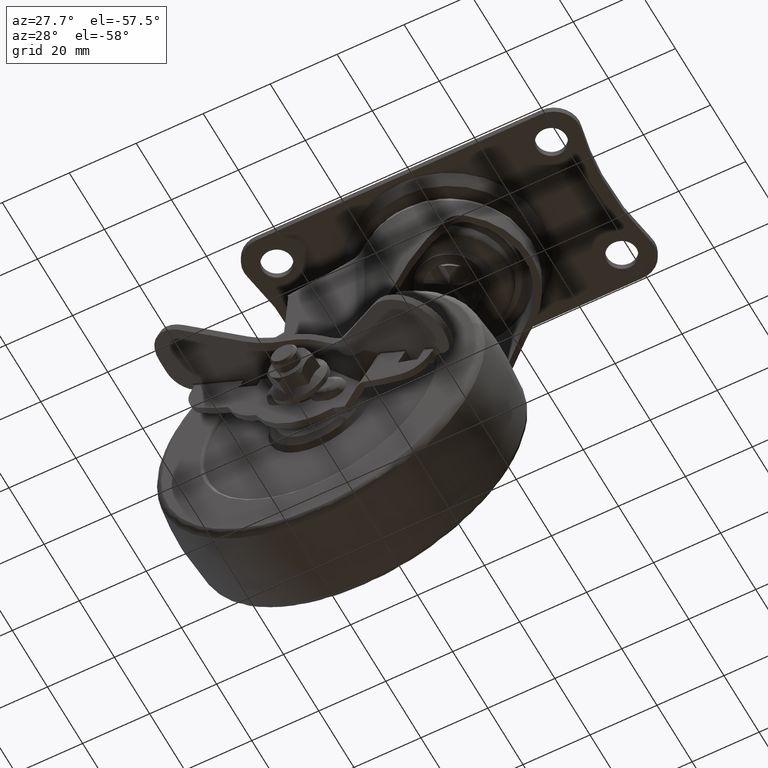
[diagram: clean part render]
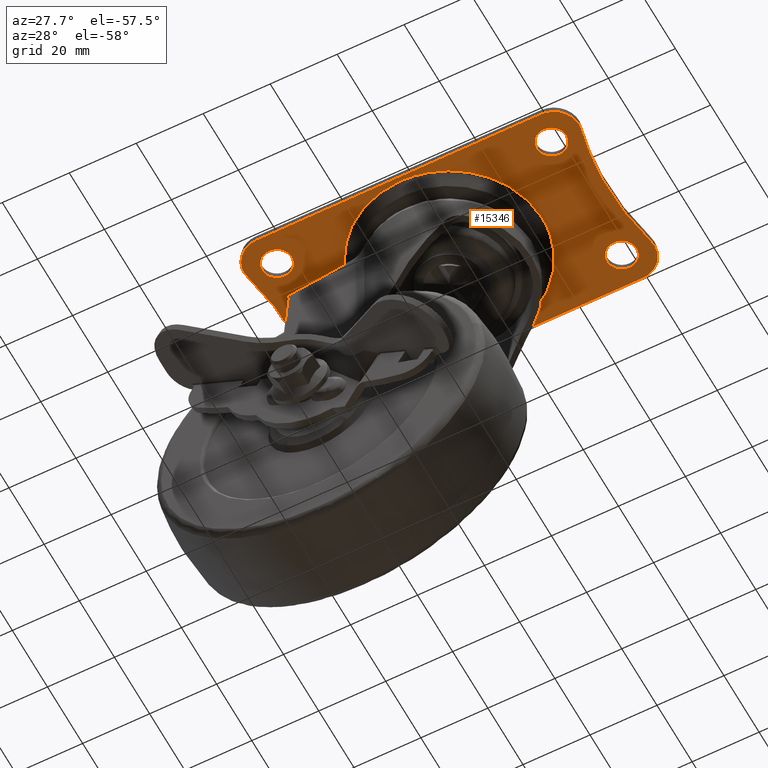
[diagram: same view with one face highlighted and labeled with its STEP entity id]
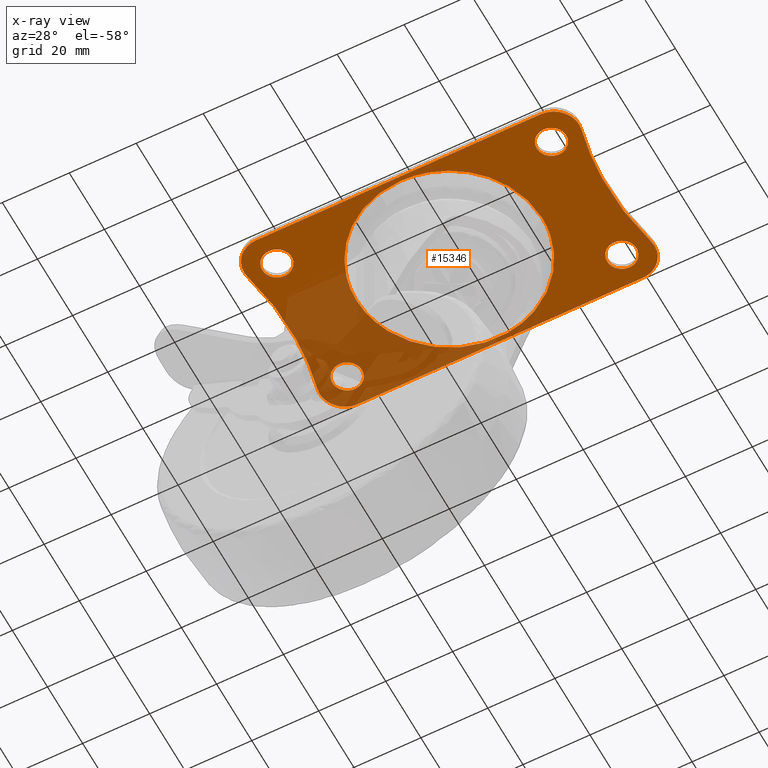
[diagram: x-ray of the same camera — body ghosted, the highlighted face saturated]
A machine part, auxiliary view. The second image highlights one B-rep face of the part: STEP entity #15346.
The next image is the same camera in x-ray: the body ghosted, the highlighted face saturated — about 31% of this face is hidden behind the body in this view.
In plain terms, the highlighted face is a freeform B-spline surface patch.
Its self-contained STEP definition (entity closure, byte-faithful):
#9036=CARTESIAN_POINT('',(-37.808353375535802,23.028759235998809,4.510281E-017));
#9037=VERTEX_POINT('',#9036);
#9043=CARTESIAN_POINT('',(-36.599999900000000,20.0,0.0));
#9044=VERTEX_POINT('',#9043);
#9045=CARTESIAN_POINT('',(-36.599999900000000,20.0,0.0));
#9046=CARTESIAN_POINT('',(-36.599326234584453,20.591642595899732,8.810454E-018));
#9047=CARTESIAN_POINT('',(-36.828199981218297,21.704569145791570,2.538362E-017));
#9048=CARTESIAN_POINT('',(-37.448755448036721,22.650347557467079,3.946769E-017));
#9049=CARTESIAN_POINT('',(-37.808353375535802,23.028759235998809,4.510281E-017));
#9050=B_SPLINE_CURVE_WITH_KNOTS('',3,(#9045,#9046,#9047,#9048,#9049),.UNSPECIFIED.,.F.,.U.,(4,1,4),(0.000000125256193,1.774679087385297,3.340637925313379),.UNSPECIFIED.);
#9051=EDGE_CURVE('',#9044,#9037,#9050,.T.);
#9053=CARTESIAN_POINT('',(-40.999995359596333,15.599999900002450,0.0));
#9054=VERTEX_POINT('',#9053);
#9055=CARTESIAN_POINT('',(-40.999995359596333,15.599999900002450,0.0));
#9056=CARTESIAN_POINT('',(-40.676029447133722,15.599966680798840,0.0));
#9057=CARTESIAN_POINT('',(-39.920038995695997,15.683750069068511,0.0));
#9058=CARTESIAN_POINT('',(-38.935462604216788,16.063471376692029,0.0));
#9059=CARTESIAN_POINT('',(-38.107489630315243,16.646852834127259,0.0));
#9060=CARTESIAN_POINT('',(-37.508903166445542,17.275539651516169,0.0));
#9061=CARTESIAN_POINT('',(-37.005713955834601,18.070057284172030,0.0));
#9062=CARTESIAN_POINT('',(-36.675839400117930,18.992077417293881,0.0));
#9063=CARTESIAN_POINT('',(-36.599951778581442,19.676026319193419,0.0));
#9064=CARTESIAN_POINT('',(-36.599999900000000,20.0,0.0));
#9065=B_SPLINE_CURVE_WITH_KNOTS('',3,(#9055,#9056,#9057,#9058,#9059,#9060,#9061,#9062,#9063,#9064),.UNSPECIFIED.,.F.,.U.,(4,1,1,1,1,1,1,4),(0.000000460138867,0.971939552033052,2.267926207290485,3.131933760526557,3.995801355094923,4.859759915721695,5.939735721904775,6.911674816714666),.UNSPECIFIED.);
#9066=EDGE_CURVE('',#9054,#9044,#9065,.T.);
#9068=CARTESIAN_POINT('',(-45.400000100000007,20.0,0.0));
#9069=VERTEX_POINT('',#9068);
#9070=CARTESIAN_POINT('',(-45.400000100000007,20.0,0.0));
#9071=CARTESIAN_POINT('',(-45.400607781809683,19.423931304166221,0.0));
#9072=CARTESIAN_POINT('',(-45.220644751467617,18.524520095141650,0.0));
#9073=CARTESIAN_POINT('',(-44.539570743215251,17.286905966286380,0.0));
#9074=CARTESIAN_POINT('',(-43.713068037697937,16.460443572259070,0.0));
#9075=CARTESIAN_POINT('',(-42.475473924743874,15.779358898505309,0.0));
#9076=CARTESIAN_POINT('',(-41.576069646600367,15.599383116862450,0.0));
#9077=CARTESIAN_POINT('',(-40.999995359596333,15.599999900002450,0.0));
#9078=B_SPLINE_CURVE_WITH_KNOTS('',3,(#9070,#9071,#9072,#9073,#9074,#9075,#9076,#9077),.UNSPECIFIED.,.F.,.U.,(4,1,1,1,1,4),(0.000000453793878,1.727920351884094,2.699936220534486,4.211744282343696,5.183760151598372,6.911680047661599),.UNSPECIFIED.);
#9079=EDGE_CURVE('',#9069,#9054,#9078,.T.);
#9081=CARTESIAN_POINT('',(-43.841265772415063,23.359645778603419,-7.098571E-017));
#9082=VERTEX_POINT('',#9081);
#9083=CARTESIAN_POINT('',(-43.841265772415063,23.359645778603419,-7.098571E-017));
#9084=CARTESIAN_POINT('',(-44.297910684491740,22.974421921917550,-6.284634E-017));
#9085=CARTESIAN_POINT('',(-44.924098626456363,22.174133111525929,-4.593710E-017));
#9086=CARTESIAN_POINT('',(-45.335552286770231,20.955681271940069,-2.019252E-017));
#9087=CARTESIAN_POINT('',(-45.400007563346307,20.278736757898368,-5.889408E-018));
#9088=CARTESIAN_POINT('',(-45.400000100000007,20.0,0.0));
#9089=B_SPLINE_CURVE_WITH_KNOTS('',3,(#9083,#9084,#9085,#9086,#9087,#9088),.UNSPECIFIED.,.F.,.U.,(4,1,1,4),(0.000000126610487,1.791980629221837,2.986600119089665,3.822845099270182),.UNSPECIFIED.);
#9090=EDGE_CURVE('',#9082,#9069,#9089,.T.);
#9125=CARTESIAN_POINT('',(-41.000004640403688,24.400000099997548,0.0));
#9126=VERTEX_POINT('',#9125);
#9127=CARTESIAN_POINT('',(-41.000004640403688,24.400000099997548,0.0));
#9128=CARTESIAN_POINT('',(-41.482668478367749,24.400273100476308,-1.205881E-017));
#9129=CARTESIAN_POINT('',(-42.512036758557500,24.228826140428591,-3.777641E-017));
#9130=CARTESIAN_POINT('',(-43.423907623898501,23.713278709472821,-6.055848E-017));
#9131=CARTESIAN_POINT('',(-43.841265772415063,23.359645778603419,-7.098571E-017));
#9132=B_SPLINE_CURVE_WITH_KNOTS('',3,(#9127,#9128,#9129,#9130,#9131),.UNSPECIFIED.,.F.,.U.,(4,1,4),(0.000000084885139,1.447918023533089,3.088834453250993),.UNSPECIFIED.);
#9133=EDGE_CURVE('',#9126,#9082,#9132,.T.);
#9135=CARTESIAN_POINT('',(-37.808353375535802,23.028759235998809,4.510281E-017));
#9136=CARTESIAN_POINT('',(-38.141025432062143,23.379792775896320,4.040166E-017));
#9137=CARTESIAN_POINT('',(-38.773222376888249,23.856419622008229,3.146777E-017));
#9138=CARTESIAN_POINT('',(-39.884161073203650,24.300690845817080,1.576855E-017));
#9139=CARTESIAN_POINT('',(-40.590819765973357,24.400135836787701,5.782397E-018));
#9140=CARTESIAN_POINT('',(-41.000004640403688,24.400000099997548,0.0));
#9141=B_SPLINE_CURVE_WITH_KNOTS('',3,(#9135,#9136,#9137,#9138,#9139,#9140),.UNSPECIFIED.,.F.,.U.,(4,1,1,4),(0.000000129539582,1.450770006644467,2.343492782973436,3.571043813885696),.UNSPECIFIED.);
#9142=EDGE_CURVE('',#9037,#9126,#9141,.T.);
#9232=CARTESIAN_POINT('',(-37.808353375535802,-16.971240764001202,4.510281E-017));
#9233=VERTEX_POINT('',#9232);
#9239=CARTESIAN_POINT('',(-36.599999900000000,-20.0,0.0));
#9240=VERTEX_POINT('',#9239);
#9241=CARTESIAN_POINT('',(-36.599999900000000,-20.0,0.0));
#9242=CARTESIAN_POINT('',(-36.599627481785802,-19.477977492158740,7.773705E-018));
#9243=CARTESIAN_POINT('',(-36.800567507259842,-18.364783425246141,2.435085E-017));
#9244=CARTESIAN_POINT('',(-37.400581059374083,-17.399925240095950,3.871905E-017));
#9245=CARTESIAN_POINT('',(-37.808353375535802,-16.971240764001202,4.510281E-017));
#9246=B_SPLINE_CURVE_WITH_KNOTS('',3,(#9241,#9242,#9243,#9244,#9245),.UNSPECIFIED.,.F.,.U.,(4,1,4),(0.000000125255292,1.565958963268513,3.340637925313375),.UNSPECIFIED.);
#9247=EDGE_CURVE('',#9240,#9233,#9246,.T.);
#9249=CARTESIAN_POINT('',(-40.999995359596340,-24.400000099997548,0.0));
#9250=VERTEX_POINT('',#9249);
#9251=CARTESIAN_POINT('',(-40.999995359596340,-24.400000099997548,0.0));
#9252=CARTESIAN_POINT('',(-40.604020204652649,-24.400141210927881,0.0));
#9253=CARTESIAN_POINT('',(-39.848164238300868,-24.297210356630568,0.0));
#9254=CARTESIAN_POINT('',(-38.675186393094577,-23.811746986022840,0.0));
#9255=CARTESIAN_POINT('',(-37.686882654669617,-23.000604714754399,0.0));
#9256=CARTESIAN_POINT('',(-36.834999431412967,-21.691093609795828,0.0));
#9257=CARTESIAN_POINT('',(-36.599039591387921,-20.648161910889719,0.0));
#9258=CARTESIAN_POINT('',(-36.599999900000000,-20.0,0.0));
#9259=B_SPLINE_CURVE_WITH_KNOTS('',3,(#9251,#9252,#9253,#9254,#9255,#9256,#9257,#9258),.UNSPECIFIED.,.F.,.U.,(4,1,1,1,1,4),(0.000000460142762,1.187911892418697,2.267926207293846,3.779741512305171,4.967763505593353,6.911674816714607),.UNSPECIFIED.);
#9260=EDGE_CURVE('',#9250,#9240,#9259,.T.);
#9262=CARTESIAN_POINT('',(-45.400000100000007,-20.0,0.0));
#9263=VERTEX_POINT('',#9262);
#9264=CARTESIAN_POINT('',(-45.400000100000007,-20.0,0.0));
#9265=CARTESIAN_POINT('',(-45.400590200546489,-20.576045076640121,0.0));
#9266=CARTESIAN_POINT('',(-45.206349405249071,-21.547521165000010,0.0));
#9267=CARTESIAN_POINT('',(-44.565951813948892,-22.645877436977731,0.0));
#9268=CARTESIAN_POINT('',(-43.767874856441608,-23.484297200909161,0.0));
#9269=CARTESIAN_POINT('',(-42.619609015822682,-24.192072380241189,0.0));
#9270=CARTESIAN_POINT('',(-41.576008540878988,-24.400581873365780,0.0));
#9271=CARTESIAN_POINT('',(-40.999995359596340,-24.400000099997548,0.0));
#9272=B_SPLINE_CURVE_WITH_KNOTS('',3,(#9264,#9265,#9266,#9267,#9268,#9269,#9270,#9271),.UNSPECIFIED.,.F.,.U.,(4,1,1,1,1,4),(0.000000453788219,1.727920351880528,2.915876126465146,3.779744377931400,5.183760151597596,6.911680047661633),.UNSPECIFIED.);
#9273=EDGE_CURVE('',#9263,#9250,#9272,.T.);
#9275=CARTESIAN_POINT('',(-43.841265772415063,-16.640354221396581,-7.098571E-017));
#9276=VERTEX_POINT('',#9275);
#9277=CARTESIAN_POINT('',(-43.841265772415063,-16.640354221396581,-7.098571E-017));
#9278=CARTESIAN_POINT('',(-44.297944122459448,-17.025578615611138,-6.284633E-017));
#9279=CARTESIAN_POINT('',(-44.873914087001431,-17.761846773011690,-4.728977E-017));
#9280=CARTESIAN_POINT('',(-45.316808580303473,-18.964738673935319,-2.187396E-017));
#9281=CARTESIAN_POINT('',(-45.400089114430749,-19.641608075696780,-7.572436E-018));
#9282=CARTESIAN_POINT('',(-45.400000100000007,-20.0,0.0));
#9283=B_SPLINE_CURVE_WITH_KNOTS('',3,(#9277,#9278,#9279,#9280,#9281,#9282),.UNSPECIFIED.,.F.,.U.,(4,1,1,4),(0.000000126610975,1.791980629221926,2.747667593237608,3.822845099270195),.UNSPECIFIED.);
#9284=EDGE_CURVE('',#9276,#9263,#9283,.T.);
#9319=CARTESIAN_POINT('',(-41.000004640403688,-15.599999900002450,0.0));
#9320=VERTEX_POINT('',#9319);
#9321=CARTESIAN_POINT('',(-41.000004640403688,-15.599999900002450,0.0));
#9322=CARTESIAN_POINT('',(-41.547035457674838,-15.599483547155550,-1.366694E-017));
#9323=CARTESIAN_POINT('',(-42.576212063734353,-15.794674579979580,-3.937976E-017));
#9324=CARTESIAN_POINT('',(-43.472901530817850,-16.328469134564632,-6.178254E-017));
#9325=CARTESIAN_POINT('',(-43.841265772415063,-16.640354221396581,-7.098571E-017));
#9326=B_SPLINE_CURVE_WITH_KNOTS('',3,(#9321,#9322,#9323,#9324,#9325),.UNSPECIFIED.,.F.,.U.,(4,1,4),(0.000000084884503,1.640915776160015,3.088834453251002),.UNSPECIFIED.);
#9327=EDGE_CURVE('',#9320,#9276,#9326,.T.);
#9329=CARTESIAN_POINT('',(-37.808353375535802,-16.971240764001202,4.510281E-017));
#9330=CARTESIAN_POINT('',(-38.243057964426072,-16.511782998019779,3.895979E-017));
#9331=CARTESIAN_POINT('',(-39.252129365839018,-15.829673034506680,2.470010E-017));
#9332=CARTESIAN_POINT('',(-40.441953334743793,-15.599452979358061,7.886104E-018));
#9333=CARTESIAN_POINT('',(-41.000004640403688,-15.599999900002450,0.0));
#9334=B_SPLINE_CURVE_WITH_KNOTS('',3,(#9329,#9330,#9331,#9332,#9333),.UNSPECIFIED.,.F.,.U.,(4,1,4),(0.000000129539294,1.897087737921803,3.571043813885686),.UNSPECIFIED.);
#9335=EDGE_CURVE('',#9233,#9320,#9334,.T.);
#9426=CARTESIAN_POINT('',(44.191646624464212,23.028759235998809,4.510281E-017));
#9427=VERTEX_POINT('',#9426);
#9433=CARTESIAN_POINT('',(45.400000100000007,20.0,0.0));
#9434=VERTEX_POINT('',#9433);
#9435=CARTESIAN_POINT('',(45.400000100000007,20.0,0.0));
#9436=CARTESIAN_POINT('',(45.400763296925099,20.591675775948602,8.810948E-018));
#9437=CARTESIAN_POINT('',(45.171675140227201,21.704495188128590,2.538251E-017));
#9438=CARTESIAN_POINT('',(44.551303441960570,22.650387389053979,3.946828E-017));
#9439=CARTESIAN_POINT('',(44.191646624464212,23.028759235998809,4.510281E-017));
#9440=B_SPLINE_CURVE_WITH_KNOTS('',3,(#9435,#9436,#9437,#9438,#9439),.UNSPECIFIED.,.F.,.U.,(4,1,4),(0.000000125256229,1.774679087385618,3.340637925313373),.UNSPECIFIED.);
#9441=EDGE_CURVE('',#9434,#9427,#9440,.T.);
#9443=CARTESIAN_POINT('',(41.000004640403667,15.599999900002450,0.0));
#9444=VERTEX_POINT('',#9443);
#9445=CARTESIAN_POINT('',(41.000004640403667,15.599999900002450,0.0));
#9446=CARTESIAN_POINT('',(41.576071845699140,15.599392930738150,0.0));
#9447=CARTESIAN_POINT('',(42.475490195610213,15.779346738342420,0.0));
#9448=CARTESIAN_POINT('',(43.713067453243497,16.460453464487539,0.0));
#9449=CARTESIAN_POINT('',(44.487938650094037,17.235221887885370,0.0));
#9450=CARTESIAN_POINT('',(45.197463393300161,18.452864674061370,0.0));
#9451=CARTESIAN_POINT('',(45.401053393963537,19.351784646075320,0.0));
#9452=CARTESIAN_POINT('',(45.400000100000007,20.0,0.0));
#9453=B_SPLINE_CURVE_WITH_KNOTS('',3,(#9445,#9446,#9447,#9448,#9449,#9450,#9451,#9452),.UNSPECIFIED.,.F.,.U.,(4,1,1,1,1,4),(0.000000460139980,1.727919049659939,2.699934183081793,4.211741092349952,4.967763505592465,6.911674816714671),.UNSPECIFIED.);
#9454=EDGE_CURVE('',#9444,#9434,#9453,.T.);
#9456=CARTESIAN_POINT('',(36.599999900000000,20.0,0.0));
#9457=VERTEX_POINT('',#9456);
#9458=CARTESIAN_POINT('',(36.599999900000000,20.0,0.0));
#9459=CARTESIAN_POINT('',(36.599310131613983,19.423896235975231,0.0));
#9460=CARTESIAN_POINT('',(36.765042728769792,18.596536449218089,0.0));
#9461=CARTESIAN_POINT('',(37.347400217043173,17.473961179307182,0.0));
#9462=CARTESIAN_POINT('',(37.989101529249773,16.730068055101452,0.0));
#9463=CARTESIAN_POINT('',(38.876375245152381,16.105241301741309,0.0));
#9464=CARTESIAN_POINT('',(39.848148215939823,15.702749678452790,0.0));
#9465=CARTESIAN_POINT('',(40.604025221004839,15.599857729474740,0.0));
#9466=CARTESIAN_POINT('',(41.000004640403667,15.599999900002450,0.0));
#9467=B_SPLINE_CURVE_WITH_KNOTS('',3,(#9458,#9459,#9460,#9461,#9462,#9463,#9464,#9465,#9466),.UNSPECIFIED.,.F.,.U.,(4,1,1,1,1,1,4),(0.000000453793280,1.727920351883699,2.483900422959851,3.779744377932775,4.643752584677594,5.723767716651169,6.911680047661629),.UNSPECIFIED.);
#9468=EDGE_CURVE('',#9457,#9444,#9467,.T.);
#9470=CARTESIAN_POINT('',(38.158734227584937,23.359645778603419,-7.098571E-017));
#9471=VERTEX_POINT('',#9470);
#9472=CARTESIAN_POINT('',(38.158734227584937,23.359645778603419,-7.098571E-017));
#9473=CARTESIAN_POINT('',(37.702058812783690,22.974421723235441,-6.284634E-017));
#9474=CARTESIAN_POINT('',(37.126084906330412,22.238152538582380,-4.728976E-017));
#9475=CARTESIAN_POINT('',(36.683190821877638,21.035262032408738,-2.187397E-017));
#9476=CARTESIAN_POINT('',(36.599911892731569,20.358388893084790,-7.572372E-018));
#9477=CARTESIAN_POINT('',(36.599999900000000,20.0,0.0));
#9478=B_SPLINE_CURVE_WITH_KNOTS('',3,(#9472,#9473,#9474,#9475,#9476,#9477),.UNSPECIFIED.,.F.,.U.,(4,1,1,4),(0.000000126609319,1.791980629221591,2.747667593237516,3.822845099270190),.UNSPECIFIED.);
#9479=EDGE_CURVE('',#9471,#9457,#9478,.T.);
#9514=CARTESIAN_POINT('',(40.999995359596319,24.400000099997548,0.0));
#9515=VERTEX_POINT('',#9514);
#9516=CARTESIAN_POINT('',(40.999995359596319,24.400000099997548,0.0));
#9517=CARTESIAN_POINT('',(40.452972107819640,24.400453391046089,-1.366675E-017));
#9518=CARTESIAN_POINT('',(39.423786312015672,24.205382020782650,-3.937980E-017));
#9519=CARTESIAN_POINT('',(38.527087972453621,23.671537379245130,-6.178280E-017));
#9520=CARTESIAN_POINT('',(38.158734227584937,23.359645778603419,-7.098571E-017));
#9521=B_SPLINE_CURVE_WITH_KNOTS('',3,(#9516,#9517,#9518,#9519,#9520),.UNSPECIFIED.,.F.,.U.,(4,1,4),(0.000000084884445,1.640915776160308,3.088834453251010),.UNSPECIFIED.);
#9522=EDGE_CURVE('',#9515,#9471,#9521,.T.);
#9524=CARTESIAN_POINT('',(44.191646624464212,23.028759235998809,4.510281E-017));
#9525=CARTESIAN_POINT('',(43.756943726630389,23.488217245653718,3.895981E-017));
#9526=CARTESIAN_POINT('',(42.747866823221692,24.170327258349531,2.470005E-017));
#9527=CARTESIAN_POINT('',(41.558050108599133,24.400546087498540,7.886153E-018));
#9528=CARTESIAN_POINT('',(40.999995359596319,24.400000099997548,0.0));
#9529=B_SPLINE_CURVE_WITH_KNOTS('',3,(#9524,#9525,#9526,#9527,#9528),.UNSPECIFIED.,.F.,.U.,(4,1,4),(0.000000129540891,1.897087737922186,3.571043813885688),.UNSPECIFIED.);
#9530=EDGE_CURVE('',#9427,#9515,#9529,.T.);
#9621=CARTESIAN_POINT('',(44.191646624464212,-16.971240764001191,4.510281E-017));
#9622=VERTEX_POINT('',#9621);
#9628=CARTESIAN_POINT('',(45.400000100000007,-20.0,0.0));
#9629=VERTEX_POINT('',#9628);
#9630=CARTESIAN_POINT('',(45.400000100000007,-20.0,0.0));
#9631=CARTESIAN_POINT('',(45.400371690143132,-19.477975236255080,7.773739E-018));
#9632=CARTESIAN_POINT('',(45.199434999601529,-18.364783948082788,2.435084E-017));
#9633=CARTESIAN_POINT('',(44.599419663391501,-17.399926227180970,3.871903E-017));
#9634=CARTESIAN_POINT('',(44.191646624464212,-16.971240764001191,4.510281E-017));
#9635=B_SPLINE_CURVE_WITH_KNOTS('',3,(#9630,#9631,#9632,#9633,#9634),.UNSPECIFIED.,.F.,.U.,(4,1,4),(0.000000125254362,1.565958963268174,3.340637925313387),.UNSPECIFIED.);
#9636=EDGE_CURVE('',#9629,#9622,#9635,.T.);
#9638=CARTESIAN_POINT('',(41.000004640403667,-24.400000099997548,0.0));
#9639=VERTEX_POINT('',#9638);
#9640=CARTESIAN_POINT('',(41.000004640403667,-24.400000099997548,0.0));
#9641=CARTESIAN_POINT('',(41.648135041192340,-24.400983394968421,0.0));
#9642=CARTESIAN_POINT('',(42.763155685121482,-24.148854542784040,0.0));
#9643=CARTESIAN_POINT('',(44.055883898841323,-23.261835688795621,0.0));
#9644=CARTESIAN_POINT('',(44.727339394858006,-22.401129663869099,0.0));
#9645=CARTESIAN_POINT('',(45.249481842404052,-21.331549353665761,0.0));
#9646=CARTESIAN_POINT('',(45.400583859929668,-20.576085410968201,0.0));
#9647=CARTESIAN_POINT('',(45.400000100000007,-20.0,0.0));
#9648=B_SPLINE_CURVE_WITH_KNOTS('',3,(#9640,#9641,#9642,#9643,#9644,#9645,#9646,#9647),.UNSPECIFIED.,.F.,.U.,(4,1,1,1,1,4),(0.000000460140767,1.943911772386969,3.347906009618380,4.643749068791827,5.183756225167715,6.911674816714633),.UNSPECIFIED.);
#9649=EDGE_CURVE('',#9639,#9629,#9648,.T.);
#9651=CARTESIAN_POINT('',(36.599999900000000,-20.0,0.0));
#9652=VERTEX_POINT('',#9651);
#9653=CARTESIAN_POINT('',(36.599999900000000,-20.0,0.0));
#9654=CARTESIAN_POINT('',(36.599966735913171,-20.323969942578259,0.0));
#9655=CARTESIAN_POINT('',(36.683774429641034,-21.079934129278548,0.0));
#9656=CARTESIAN_POINT('',(37.141863349434608,-22.268308701461951,0.0));
#9657=CARTESIAN_POINT('',(38.045725021565531,-23.369711744615110,0.0));
#9658=CARTESIAN_POINT('',(39.380442966441031,-24.192012238945079,0.0));
#9659=CARTESIAN_POINT('',(40.423980788776312,-24.400597124536290,0.0));
#9660=CARTESIAN_POINT('',(41.000004640403667,-24.400000099997548,0.0));
#9661=B_SPLINE_CURVE_WITH_KNOTS('',3,(#9653,#9654,#9655,#9656,#9657,#9658,#9659,#9660),.UNSPECIFIED.,.F.,.U.,(4,1,1,1,1,4),(0.000000453793152,0.971940283346328,2.267927917548367,3.779744377933133,5.183760151597977,6.911680047661641),.UNSPECIFIED.);
#9662=EDGE_CURVE('',#9652,#9639,#9661,.T.);
#9664=CARTESIAN_POINT('',(38.158734227584937,-16.640354221396581,-7.098571E-017));
#9665=VERTEX_POINT('',#9664);
#9666=CARTESIAN_POINT('',(38.158734227584937,-16.640354221396581,-7.098571E-017));
#9667=CARTESIAN_POINT('',(37.824127276871423,-16.923077383848749,-6.501207E-017));
#9668=CARTESIAN_POINT('',(37.373351620856958,-17.438119453086390,-5.412978E-017));
#9669=CARTESIAN_POINT('',(36.772973986927283,-18.566948686573308,-3.027883E-017));
#9670=CARTESIAN_POINT('',(36.599236853975519,-19.402533943545610,-1.262382E-017));
#9671=CARTESIAN_POINT('',(36.599999900000000,-20.0,0.0));
#9672=B_SPLINE_CURVE_WITH_KNOTS('',3,(#9666,#9667,#9668,#9669,#9670,#9671),.UNSPECIFIED.,.F.,.U.,(4,1,1,4),(0.000000126610369,1.314123081121320,2.030864596559126,3.822845099270190),.UNSPECIFIED.);
#9673=EDGE_CURVE('',#9665,#9652,#9672,.T.);
#9708=CARTESIAN_POINT('',(40.999995359596319,-15.599999900002450,0.0));
#9709=VERTEX_POINT('',#9708);
#9710=CARTESIAN_POINT('',(40.999995359596319,-15.599999900002450,0.0));
#9711=CARTESIAN_POINT('',(40.452976886484500,-15.599565285710071,-1.366663E-017));
#9712=CARTESIAN_POINT('',(39.423773143816177,-15.794575653727740,-3.938012E-017));
#9713=CARTESIAN_POINT('',(38.527092373260153,-16.328474129902869,-6.178269E-017));
#9714=CARTESIAN_POINT('',(38.158734227584937,-16.640354221396581,-7.098571E-017));
#9715=B_SPLINE_CURVE_WITH_KNOTS('',3,(#9710,#9711,#9712,#9713,#9714),.UNSPECIFIED.,.F.,.U.,(4,1,4),(0.000000084884916,1.640915776160376,3.088834453251018),.UNSPECIFIED.);
#9716=EDGE_CURVE('',#9709,#9665,#9715,.T.);
#9718=CARTESIAN_POINT('',(44.191646624464212,-16.971240764001191,4.510281E-017));
#9719=CARTESIAN_POINT('',(43.807899059265019,-16.566092473903769,3.967989E-017));
#9720=CARTESIAN_POINT('',(42.821921722453183,-15.861368181837699,2.574655E-017));
#9721=CARTESIAN_POINT('',(41.632485131820872,-15.599143047932440,8.938031E-018));
#9722=CARTESIAN_POINT('',(40.999995359596319,-15.599999900002450,0.0));
#9723=B_SPLINE_CURVE_WITH_KNOTS('',3,(#9718,#9719,#9720,#9721,#9722),.UNSPECIFIED.,.F.,.U.,(4,1,4),(0.000000129539267,1.673956205506559,3.571043813885685),.UNSPECIFIED.);
#9724=EDGE_CURVE('',#9622,#9709,#9723,.T.);
#13945=CARTESIAN_POINT('',(12.442635101949760,24.804101224093799,-9.043226E-015));
#13946=VERTEX_POINT('',#13945);
#13955=CARTESIAN_POINT('',(27.750001972865551,-1.421085E-014,0.0));
#13956=VERTEX_POINT('',#13955);
#13957=CARTESIAN_POINT('',(12.442635101949760,24.804101224093799,-9.043226E-015));
#13958=CARTESIAN_POINT('',(14.443010209545131,23.801278452714460,-7.931788E-015));
#13959=CARTESIAN_POINT('',(17.259504043172559,21.931009394084601,-6.352501E-015));
#13960=CARTESIAN_POINT('',(20.774587641015220,18.540560258734271,-4.348308E-015));
#13961=CARTESIAN_POINT('',(23.186343811460031,15.438895899473700,-2.948835E-015));
#13962=CARTESIAN_POINT('',(25.531776403381571,11.243637882967580,-1.550808E-015));
#13963=CARTESIAN_POINT('',(27.290178013017229,6.153282155120708,-4.415746E-016));
#13964=CARTESIAN_POINT('',(27.750354856060110,2.077794559449607,-6.509244E-017));
#13965=CARTESIAN_POINT('',(27.750001972865551,-1.421085E-014,0.0));
#13966=B_SPLINE_CURVE_WITH_KNOTS('',3,(#13957,#13958,#13959,#13960,#13961,#13962,#13963,#13964,#13965),.UNSPECIFIED.,.F.,.U.,(4,1,1,1,1,1,4),(0.000000101311382,6.712812370621137,10.069242136705020,14.624377671965849,18.460251740671911,24.453847909144962,30.687174630471350),.UNSPECIFIED.);
#13967=EDGE_CURVE('',#13946,#13956,#13966,.T.);
#13969=CARTESIAN_POINT('',(-0.000003888260933,-27.750001972865292,-3.330669E-016));
#13970=VERTEX_POINT('',#13969);
#13971=CARTESIAN_POINT('',(27.750001972865551,-1.421085E-014,0.0));
#13972=CARTESIAN_POINT('',(27.750277953308590,-1.929748904837548,-1.157916E-017));
#13973=CARTESIAN_POINT('',(27.393314805520099,-5.335074768102627,-3.415743E-017));
#13974=CARTESIAN_POINT('',(25.903544092038970,-10.357100952245551,-7.323605E-017));
#13975=CARTESIAN_POINT('',(23.903507859121291,-14.330553950523310,-1.090842E-016));
#13976=CARTESIAN_POINT('',(21.105269350624781,-18.201786179468471,-1.491090E-016));
#13977=CARTESIAN_POINT('',(18.282502729243170,-21.024706817376519,-1.829900E-016));
#13978=CARTESIAN_POINT('',(14.888380097481930,-23.509558645558251,-2.182709E-016));
#13979=CARTESIAN_POINT('',(11.398358220724660,-25.430562813467859,-2.507436E-016));
#13980=CARTESIAN_POINT('',(6.356511765923461,-27.234866447710761,-2.918287E-016));
#13981=CARTESIAN_POINT('',(2.383856854886706,-27.750614021294950,-3.187645E-016));
#13982=CARTESIAN_POINT('',(-0.000003888260933,-27.750001972865292,-3.330669E-016));
#13983=B_SPLINE_CURVE_WITH_KNOTS('',3,(#13971,#13972,#13973,#13974,#13975,#13976,#13977,#13978,#13979,#13980,#13981,#13982),.UNSPECIFIED.,.F.,.U.,(4,1,1,1,1,1,1,1,1,4),(0.000000031062591,5.789238135108143,10.216371515769310,15.665124424090489,19.070584255372498,24.519302286078329,27.584197236611789,31.670759666482329,36.438437836399537,43.589876865275869),.UNSPECIFIED.);
#13984=EDGE_CURVE('',#13956,#13970,#13983,.T.);
#13986=CARTESIAN_POINT('',(-27.750001972865551,-1.421085E-014,-3.330669E-016));
#13987=VERTEX_POINT('',#13986);
#13988=CARTESIAN_POINT('',(-0.000003888260933,-27.750001972865292,-3.330669E-016));
#13989=CARTESIAN_POINT('',(-1.929764755687028,-27.750308833223890,-3.446496E-016));
#13990=CARTESIAN_POINT('',(-5.562087187924954,-27.369513985355031,-3.641627E-016));
#13991=CARTESIAN_POINT('',(-11.006336892469340,-25.681794155861169,-3.867064E-016));
#13992=CARTESIAN_POINT('',(-15.909084808459680,-22.983417897247222,-3.999353E-016));
#13993=CARTESIAN_POINT('',(-19.622757221992899,-19.779571302174091,-4.029949E-016));
#13994=CARTESIAN_POINT('',(-22.203080838352761,-16.750564341980169,-4.003023E-016));
#13995=CARTESIAN_POINT('',(-24.541318383739380,-13.251971261914290,-3.933387E-016));
#13996=CARTESIAN_POINT('',(-26.299915908608330,-9.284400434831728,-3.800822E-016));
#13997=CARTESIAN_POINT('',(-27.487896596332440,-4.540491467145141,-3.587424E-016));
#13998=CARTESIAN_POINT('',(-27.750198173090979,-1.702728765264836,-3.432865E-016));
#13999=CARTESIAN_POINT('',(-27.750001972865551,-1.421085E-014,-3.330669E-016));
#14000=B_SPLINE_CURVE_WITH_KNOTS('',3,(#13988,#13989,#13990,#13991,#13992,#13993,#13994,#13995,#13996,#13997,#13998,#13999),.UNSPECIFIED.,.F.,.U.,(4,1,1,1,1,1,1,1,1,4),(0.000000032424957,5.789237554323513,10.897468981643581,17.027296112360801,22.476022005512341,25.540934929475519,28.946374559102161,35.076246402708733,38.481701754087098,43.589872482272050),.UNSPECIFIED.);
#14001=EDGE_CURVE('',#13970,#13987,#14000,.T.);
#14003=CARTESIAN_POINT('',(-24.804101224093820,12.442635101949740,-9.035567E-015));
#14004=VERTEX_POINT('',#14003);
#14005=CARTESIAN_POINT('',(-27.750001972865551,-1.421085E-014,-3.330669E-016));
#14006=CARTESIAN_POINT('',(-27.750168771865969,1.814417356245152,-3.325742E-016));
#14007=CARTESIAN_POINT('',(-27.326807130060931,6.115230645900714,-1.583229E-015));
#14008=CARTESIAN_POINT('',(-25.919778658423681,10.220460200104370,-5.739739E-015));
#14009=CARTESIAN_POINT('',(-24.804101224093820,12.442635101949740,-9.035567E-015));
#14010=B_SPLINE_CURVE_WITH_KNOTS('',3,(#14005,#14006,#14007,#14008,#14009),.UNSPECIFIED.,.F.,.U.,(4,1,4),(0.000000016150615,5.443265752666808,12.902550309860789),.UNSPECIFIED.);
#14011=EDGE_CURVE('',#13987,#14004,#14010,.T.);
#14047=CARTESIAN_POINT('',(-24.804101224093820,12.442635101949740,-9.035567E-015));
#14048=CARTESIAN_POINT('',(-23.939127398622499,14.167695270194679,-7.715304E-015));
#14049=CARTESIAN_POINT('',(-22.277639509443560,16.762950439127199,-5.838884E-015));
#14050=CARTESIAN_POINT('',(-19.227255619209959,20.137867954883330,-3.670088E-015));
#14051=CARTESIAN_POINT('',(-15.990460219263101,22.835303269774560,-2.180239E-015));
#14052=CARTESIAN_POINT('',(-12.154508294762151,25.077990155092209,-1.290681E-015));
#14053=CARTESIAN_POINT('',(-7.802791292183797,26.763508328066600,-1.070031E-015));
#14054=CARTESIAN_POINT('',(-3.449042548884019,27.663655485024812,-1.571170E-015));
#14055=CARTESIAN_POINT('',(0.759363626587916,27.824262444447751,-2.707070E-015));
#14056=CARTESIAN_POINT('',(4.608047996033317,27.450575517084811,-4.223889E-015));
#14057=CARTESIAN_POINT('',(8.485290893057810,26.535392191616310,-6.246647E-015));
#14058=CARTESIAN_POINT('',(11.123649272625110,25.465871140611281,-8.033321E-015));
#14059=CARTESIAN_POINT('',(12.442635101949760,24.804101224093799,-9.043226E-015));
#14060=B_SPLINE_CURVE_WITH_KNOTS('',3,(#14047,#14048,#14049,#14050,#14051,#14052,#14053,#14054,#14055,#14056,#14057,#14058,#14059),.UNSPECIFIED.,.F.,.U.,(4,1,1,1,1,1,1,1,1,1,4),(0.000000031710108,5.789237822081148,9.194722765716271,13.621853126609640,18.389488115714759,22.476023049747219,27.584195743169079,31.670757950489079,35.076248029184747,39.162789877686102,43.589874503617018),.UNSPECIFIED.);
#14061=EDGE_CURVE('',#14004,#13946,#14060,.T.);
#15200=CARTESIAN_POINT('',(-54.994837689527522,31.897100037434750,0.0));
#15201=CARTESIAN_POINT('',(54.994859193733291,31.897100037434750,0.0));
#15202=CARTESIAN_POINT('',(-54.994837689527522,-31.897104593116051,0.0));
#15203=CARTESIAN_POINT('',(54.994859193733291,-31.897104593116051,0.0));
#15204=B_SPLINE_SURFACE_WITH_KNOTS('',1,1,((#15200,#15202),(#15201,#15203)),.UNSPECIFIED.,.F.,.F.,.U.,(2,2),(2,2),(0.0,109.989696883260810),(0.0,63.794204630550801),.UNSPECIFIED.);
#15205=CARTESIAN_POINT('',(-49.794594143545098,-19.756756964460099,0.0));
#15206=VERTEX_POINT('',#15205);
#15207=CARTESIAN_POINT('',(-49.794595056304097,19.756760783900798,0.0));
#15208=VERTEX_POINT('',#15207);
#15209=CARTESIAN_POINT('',(-49.794594143545098,-19.756756964460099,0.0));
#15210=CARTESIAN_POINT('',(-49.191138090733773,-17.231626866835761,0.0));
#15211=CARTESIAN_POINT('',(-47.981585914902297,-10.900683863021010,0.0));
#15212=CARTESIAN_POINT('',(-47.270524423115852,-1.455370960742131,0.0));
#15213=CARTESIAN_POINT('',(-47.761223143173112,9.245023355923177,0.0));
#15214=CARTESIAN_POINT('',(-48.901331418507830,16.019591677937068,0.0));
#15215=CARTESIAN_POINT('',(-49.794595056304097,19.756760783900798,0.0));
#15216=B_SPLINE_CURVE_WITH_KNOTS('',3,(#15209,#15210,#15211,#15212,#15213,#15214,#15215),.UNSPECIFIED.,.F.,.U.,(4,1,1,1,4),(8.869229E-009,7.788720618942779,19.316037805289131,28.350951704200249,39.878263886740363),.UNSPECIFIED.);
#15217=EDGE_CURVE('',#15206,#15208,#15216,.T.);
#15218=ORIENTED_EDGE('',*,*,#15217,.T.);
#15219=CARTESIAN_POINT('',(-42.499997643805600,28.999999999999499,0.0));
#15220=VERTEX_POINT('',#15219);
#15221=CARTESIAN_POINT('',(-42.499997643805600,28.999999999999499,0.0));
#15222=CARTESIAN_POINT('',(-43.275810074578992,29.000428412056412,0.0));
#15223=CARTESIAN_POINT('',(-44.368633664138322,28.828847632731840,0.0));
#15224=CARTESIAN_POINT('',(-45.815875003625358,28.261059170523751,0.0));
#15225=CARTESIAN_POINT('',(-47.161283610740107,27.475240162372121,0.0));
#15226=CARTESIAN_POINT('',(-48.307683149073917,26.350782343430730,0.0));
#15227=CARTESIAN_POINT('',(-49.145903877804720,25.040542178634709,0.0));
#15228=CARTESIAN_POINT('',(-49.687253472690607,23.809576949717009,0.0));
#15229=CARTESIAN_POINT('',(-50.084351718043038,22.007463785852849,0.0));
#15230=CARTESIAN_POINT('',(-49.991818549565650,20.579788604678889,0.0));
#15231=CARTESIAN_POINT('',(-49.794595056304097,19.756760783900798,0.0));
#15232=B_SPLINE_CURVE_WITH_KNOTS('',3,(#15221,#15222,#15223,#15224,#15225,#15226,#15227,#15228,#15229,#15230,#15231),.UNSPECIFIED.,.F.,.U.,(4,1,1,1,1,1,1,1,4),(0.000000457887239,2.327255979195884,3.279318165483055,4.654526711400246,6.981703175749765,8.039566541999069,9.309009768983955,11.001615767379690,13.540416881705010),.UNSPECIFIED.);
#15233=EDGE_CURVE('',#15220,#15208,#15232,.T.);
#15234=ORIENTED_EDGE('',*,*,#15233,.F.);
#15235=CARTESIAN_POINT('',(42.500000000000000,29.0,0.0));
#15236=VERTEX_POINT('',#15235);
#15237=CARTESIAN_POINT('',(-42.499997643805600,28.999999999999499,0.0));
#15238=CARTESIAN_POINT('',(42.500000000000000,29.0,0.0));
#15239=QUASI_UNIFORM_CURVE('',1,(#15237,#15238),.UNSPECIFIED.,.F.,.U.);
#15240=EDGE_CURVE('',#15220,#15236,#15239,.T.);
#15241=ORIENTED_EDGE('',*,*,#15240,.T.);
#15242=CARTESIAN_POINT('',(49.794603130326699,19.756754781498149,0.0));
#15243=VERTEX_POINT('',#15242);
#15244=CARTESIAN_POINT('',(49.794603130326699,19.756754781498149,0.0));
#15245=CARTESIAN_POINT('',(50.008513823651782,20.648368946338930,0.0));
#15246=CARTESIAN_POINT('',(50.087825083176043,22.223912118420682,0.0));
#15247=CARTESIAN_POINT('',(49.496001827952433,24.457405394004990,0.0));
#15248=CARTESIAN_POINT('',(48.588604418722582,25.991564718459330,0.0));
#15249=CARTESIAN_POINT('',(47.467809309318490,27.170865856751320,0.0));
#15250=CARTESIAN_POINT('',(46.241001999079188,28.074502249313401,0.0));
#15251=CARTESIAN_POINT('',(44.545034931659281,28.809592261014860,0.0));
#15252=CARTESIAN_POINT('',(43.205253533384528,29.000272084751579,0.0));
#15253=CARTESIAN_POINT('',(42.500000000000000,29.0,0.0));
#15254=B_SPLINE_CURVE_WITH_KNOTS('',3,(#15244,#15245,#15246,#15247,#15248,#15249,#15250,#15251,#15252,#15253),.UNSPECIFIED.,.F.,.U.,(4,1,1,1,1,1,1,4),(0.000000457870859,2.750378490705113,4.654529415039622,6.875891806317187,8.039571211997817,9.520587706203731,11.424738148703520,13.540424746926590),.UNSPECIFIED.);
#15255=EDGE_CURVE('',#15243,#15236,#15254,.T.);
#15256=ORIENTED_EDGE('',*,*,#15255,.F.);
#15257=CARTESIAN_POINT('',(49.794594135559400,-19.756756931044251,0.0));
#15258=VERTEX_POINT('',#15257);
#15259=CARTESIAN_POINT('',(49.794603130326699,19.756754781498149,0.0));
#15260=CARTESIAN_POINT('',(48.949653807741761,16.221590806269230,0.0));
#15261=CARTESIAN_POINT('',(47.837868829525021,9.760547700957158,0.0));
#15262=CARTESIAN_POINT('',(47.295002002586159,-0.103233947454465,0.0));
#15263=CARTESIAN_POINT('',(47.826645523320529,-9.763242179157492,0.0));
#15264=CARTESIAN_POINT('',(48.997946296372000,-16.423597574984210,0.0));
#15265=CARTESIAN_POINT('',(49.794594135559400,-19.756756931044251,0.0));
#15266=B_SPLINE_CURVE_WITH_KNOTS('',3,(#15259,#15260,#15261,#15262,#15263,#15264,#15265),.UNSPECIFIED.,.F.,.U.,(4,1,1,1,4),(8.857690E-009,10.904211639453310,19.627610234780970,29.597144099310530,39.878257439813311),.UNSPECIFIED.);
#15267=EDGE_CURVE('',#15243,#15258,#15266,.T.);
#15268=ORIENTED_EDGE('',*,*,#15267,.T.);
#15269=CARTESIAN_POINT('',(42.500002617993950,-28.999999999999549,0.0));
#15270=VERTEX_POINT('',#15269);
#15271=CARTESIAN_POINT('',(42.500002617993950,-28.999999999999549,0.0));
#15272=CARTESIAN_POINT('',(43.275817839855883,-29.000451841429030,0.0));
#15273=CARTESIAN_POINT('',(44.368637919360651,-28.828824675710749,0.0));
#15274=CARTESIAN_POINT('',(45.848824012964947,-28.248196983973742,0.0));
#15275=CARTESIAN_POINT('',(47.098015111720443,-27.506437586411081,0.0));
#15276=CARTESIAN_POINT('',(48.204115986516712,-26.451585964480049,0.0));
#15277=CARTESIAN_POINT('',(49.169204736744227,-25.054895075221840,0.0));
#15278=CARTESIAN_POINT('',(49.782435092329791,-23.576054811778580,0.0));
#15279=CARTESIAN_POINT('',(50.074753586885080,-21.683655186378580,0.0));
#15280=CARTESIAN_POINT('',(49.958756420760643,-20.442626921764830,0.0));
#15281=CARTESIAN_POINT('',(49.794594135559400,-19.756756931044251,0.0));
#15282=B_SPLINE_CURVE_WITH_KNOTS('',3,(#15271,#15272,#15273,#15274,#15275,#15276,#15277,#15278,#15279,#15280,#15281),.UNSPECIFIED.,.F.,.U.,(4,1,1,1,1,1,1,1,4),(0.000000457914897,2.327255805131632,3.279317920196272,4.760352400346232,6.664527652350964,7.828035268888026,9.837950441943871,11.424730657809739,13.540415868839030),.UNSPECIFIED.);
#15283=EDGE_CURVE('',#15270,#15258,#15282,.T.);
#15284=ORIENTED_EDGE('',*,*,#15283,.F.);
#15285=CARTESIAN_POINT('',(-42.500000000000000,-29.000003000000000,0.0));
#15286=VERTEX_POINT('',#15285);
#15287=CARTESIAN_POINT('',(42.500002617993950,-28.999999999999549,0.0));
#15288=CARTESIAN_POINT('',(-42.500000000000000,-29.000003000000000,0.0));
#15289=QUASI_UNIFORM_CURVE('',1,(#15287,#15288),.UNSPECIFIED.,.F.,.U.);
#15290=EDGE_CURVE('',#15270,#15286,#15289,.T.);
#15291=ORIENTED_EDGE('',*,*,#15290,.T.);
#15292=CARTESIAN_POINT('',(-49.794594143545098,-19.756756964460099,0.0));
#15293=CARTESIAN_POINT('',(-49.967034852756512,-20.476912325644879,0.0));
#15294=CARTESIAN_POINT('',(-50.086567700660467,-21.862042226513172,0.0));
#15295=CARTESIAN_POINT('',(-49.720173999678863,-23.782496355290458,0.0));
#15296=CARTESIAN_POINT('',(-49.027283050833617,-25.299589906319579,0.0));
#15297=CARTESIAN_POINT('',(-48.001184524603858,-26.698800748904240,0.0));
#15298=CARTESIAN_POINT('',(-46.672475474163697,-27.829902445734799,0.0));
#15299=CARTESIAN_POINT('',(-44.756382205373797,-28.758623949699189,0.0));
#15300=CARTESIAN_POINT('',(-43.346335130273722,-29.000558864718030,0.0));
#15301=CARTESIAN_POINT('',(-42.500000000000000,-29.000003000000000,0.0));
#15302=B_SPLINE_CURVE_WITH_KNOTS('',3,(#15292,#15293,#15294,#15295,#15296,#15297,#15298,#15299,#15300,#15301),.UNSPECIFIED.,.F.,.U.,(4,1,1,1,1,1,1,4),(0.000000457885228,2.221435149479657,4.125599810487616,5.818234807030337,7.193248334424031,9.309012245038833,11.001618693635420,13.540420483248241),.UNSPECIFIED.);
#15303=EDGE_CURVE('',#15206,#15286,#15302,.T.);
#15304=ORIENTED_EDGE('',*,*,#15303,.F.);
#15305=EDGE_LOOP('',(#15218,#15234,#15241,#15256,#15268,#15284,#15291,#15304));
#15306=FACE_OUTER_BOUND('',#15305,.T.);
#15307=ORIENTED_EDGE('',*,*,#14011,.F.);
#15308=ORIENTED_EDGE('',*,*,#14001,.F.);
#15309=ORIENTED_EDGE('',*,*,#13984,.F.);
#15310=ORIENTED_EDGE('',*,*,#13967,.F.);
#15311=ORIENTED_EDGE('',*,*,#14061,.F.);
#15312=EDGE_LOOP('',(#15307,#15308,#15309,#15310,#15311));
#15313=FACE_BOUND('',#15312,.T.);
#15314=ORIENTED_EDGE('',*,*,#9273,.T.);
#15315=ORIENTED_EDGE('',*,*,#9260,.T.);
#15316=ORIENTED_EDGE('',*,*,#9247,.T.);
#15317=ORIENTED_EDGE('',*,*,#9335,.T.);
#15318=ORIENTED_EDGE('',*,*,#9327,.T.);
#15319=ORIENTED_EDGE('',*,*,#9284,.T.);
#15320=EDGE_LOOP('',(#15314,#15315,#15316,#15317,#15318,#15319));
#15321=FACE_BOUND('',#15320,.T.);
#15322=ORIENTED_EDGE('',*,*,#9468,.T.);
#15323=ORIENTED_EDGE('',*,*,#9454,.T.);
#15324=ORIENTED_EDGE('',*,*,#9441,.T.);
#15325=ORIENTED_EDGE('',*,*,#9530,.T.);
#15326=ORIENTED_EDGE('',*,*,#9522,.T.);
#15327=ORIENTED_EDGE('',*,*,#9479,.T.);
#15328=EDGE_LOOP('',(#15322,#15323,#15324,#15325,#15326,#15327));
#15329=FACE_BOUND('',#15328,.T.);
#15330=ORIENTED_EDGE('',*,*,#9662,.T.);
#15331=ORIENTED_EDGE('',*,*,#9649,.T.);
#15332=ORIENTED_EDGE('',*,*,#9636,.T.);
#15333=ORIENTED_EDGE('',*,*,#9724,.T.);
#15334=ORIENTED_EDGE('',*,*,#9716,.T.);
#15335=ORIENTED_EDGE('',*,*,#9673,.T.);
#15336=EDGE_LOOP('',(#15330,#15331,#15332,#15333,#15334,#15335));
#15337=FACE_BOUND('',#15336,.T.);
#15338=ORIENTED_EDGE('',*,*,#9079,.T.);
#15339=ORIENTED_EDGE('',*,*,#9066,.T.);
#15340=ORIENTED_EDGE('',*,*,#9051,.T.);
#15341=ORIENTED_EDGE('',*,*,#9142,.T.);
#15342=ORIENTED_EDGE('',*,*,#9133,.T.);
#15343=ORIENTED_EDGE('',*,*,#9090,.T.);
#15344=EDGE_LOOP('',(#15338,#15339,#15340,#15341,#15342,#15343));
#15345=FACE_BOUND('',#15344,.T.);
#15346=ADVANCED_FACE('',(#15306,#15313,#15321,#15329,#15337,#15345),#15204,.T.);